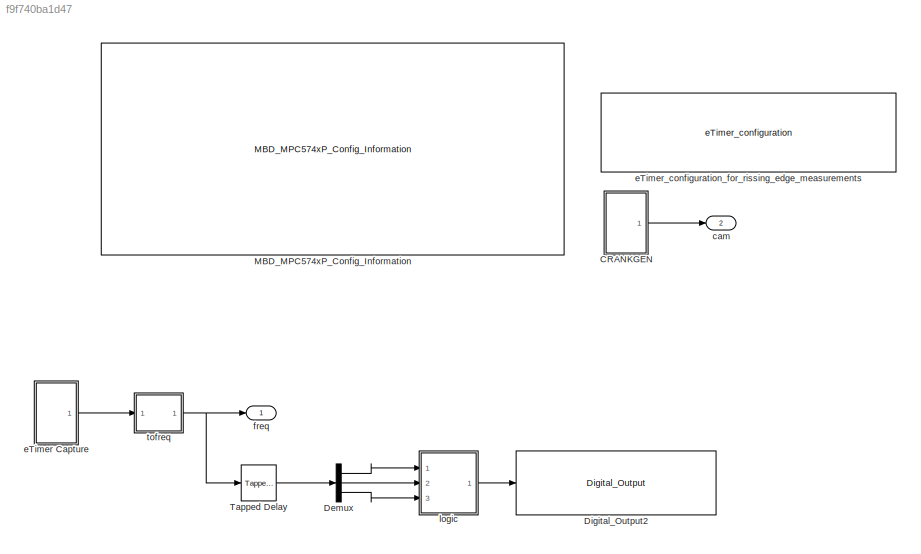
MODEL slx_f9f740ba1d47
KIND model
CONFIG AbsTol = auto
CONFIG EnableMultiTasking = on
CONFIG FixedStep = 1
CONFIG InitFcn = mbd_pnt_consistency_checks(bdroot(gcs));
CONFIG MaxStep = auto
CONFIG MinStep = auto
CONFIG RelTol = 1e-3
CONFIG SampleTimeConstraint = Unconstrained
CONFIG Solver = FixedStepDiscrete
CONFIG SolverName = FixedStepDiscrete
CONFIG StartTime = 0.0
CONFIG StopTime = 50
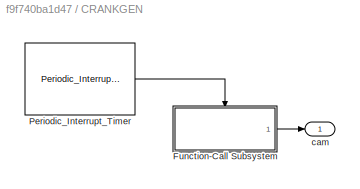
BLOCK [SubSystem] CRANKGEN
  Ports = [0, 1]
  RequestExecContextInheritance = off
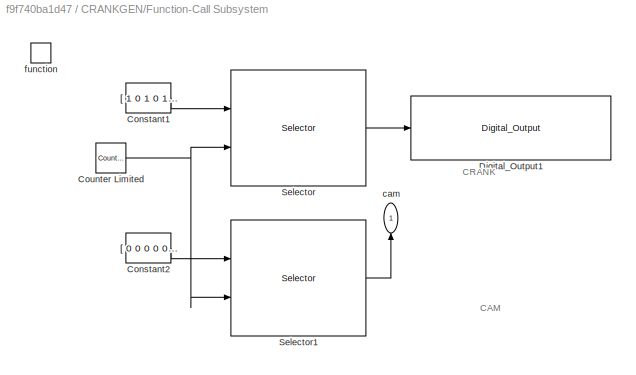
BLOCK [SubSystem] CRANKGEN/Function-Call Subsystem
  Ports = [0, 1, 0, 1]
  RequestExecContextInheritance = off
  TreatAsAtomicUnit = on
BLOCK [Constant] CRANKGEN/Function-Call Subsystem/Constant1
  OutDataTypeStr = boolean
  Value = [ 1 0 1 0 1 0 1 0 1 0 1 0 1 0 1 0 1 0 1 0 1 0 1 0 1 0 1 0 1 0 1 0 1 0 1 0 0 0 0 0 1 0 1 0 1 0 1 0 1 0 1 0 1 0 1 0 1 0 1 0 1 0 1 0 1 0 1 0 1 0 1 0 1 0 1 0 0 0 0 0 1 0 1 0 1 0 1 0 1 0 1 0 1 0 1 0 1 0 1 0 1 0 1 0 1 0 1 0 1 0 1 0 1 0 1 0 0 0 0 0 1 0 1 0 1 0 1 0 1 0 1 0 1 0 1 0 1 0 1 0 1 0 1 0 1 0 1 0 1 0 1 0 1 0 1 0 0 0 0 0 1 0 1 0 1 0 1 0 1 0 1 0 1 0 1 0 1 0 1 0 1 0 1 0 1 0 1 0 1 0 1 0 1 0 1 0 0 0 0 ...<+83ch>
BLOCK [Constant] CRANKGEN/Function-Call Subsystem/Constant2
  OutDataTypeStr = boolean
  Value = [ 0 0 0 0 0 0 0 0 0 0 0 0 0 0 0 0 0 0 0 0 0 0 0 0 0 0 0 0 0 0 0 0 0 0 0 0 0 1 0 0 0 0 0 0 0 0 0 0 0 0 0 0 0 0 0 0 0 0 0 0 0 0 0 0 0 0 0 0 0 0 0 0 0 0 0 0 0 1 0 0 0 0 0 0 0 0 0 0 0 0 0 0 0 0 0 0 0 0 0 0 0 0 0 0 0 0 0 0 0 0 0 0 0 0 0 0 0 1 0 0 0 0 0 0 0 0 0 0 0 0 0 0 0 0 0 0 0 0 0 0 0 0 0 0 0 0 0 0 0 0 0 0 0 0 0 0 0 1 0 0 0 0 0 0 0 0 0 0 0 0 0 0 0 0 0 0 0 0 0 0 0 0 0 0 0 0 0 0 0 0 0 0 0 0 0 0 0 1 0 ...<+83ch>
BLOCK [Reference] CRANKGEN/Function-Call Subsystem/Counter Limited  REF=simulink/Sources/Counter
Limited
  Ports = [0, 1]
  SourceBlock = simulink/Sources/Counter\nLimited
  SourceProductBaseCode = SL
  SourceProductName = Simulink
  SourceType = Counter Limited
BLOCK [Reference] CRANKGEN/Function-Call Subsystem/Digital_Output1  REF=mbd_pnt_ec_toolbox/MPC574xP/Peripheral Interface Blocks/Digital_Output
  Ports = [1]
  SourceBlock = mbd_pnt_ec_toolbox/MPC574xP/Peripheral Interface Blocks/Digital_Output
  SourceProductName = Model Based Design Toolbox for MPC574xP
  SourceType = GPIO_PNT_Output
BLOCK [Selector] CRANKGEN/Function-Call Subsystem/Selector
  IndexMode = Zero-based
  IndexOptions = Index vector (port)
  Indices = [1 3]
  InputPortWidth = 240
  OutputSizes = 1
  Ports = [2, 1]
BLOCK [Selector] CRANKGEN/Function-Call Subsystem/Selector1
  IndexMode = Zero-based
  IndexOptions = Index vector (port)
  Indices = [1 3]
  InputPortWidth = 240
  OutputSizes = 1
  Ports = [2, 1]
BLOCK [Outport] CRANKGEN/Function-Call Subsystem/cam
  IconDisplay = Port number
BLOCK [TriggerPort] CRANKGEN/Function-Call Subsystem/function
  Ports = []
  StatesWhenEnabling = held
  TriggerType = function-call
  VariantControl = Variant
BLOCK [Reference] CRANKGEN/Periodic_Interrupt_Timer  REF=mbd_pnt_ec_toolbox/MPC574xP/Utility Blocks/Periodic_Interrupt_Timer
  Ports = [0, 1]
  SourceBlock = mbd_pnt_ec_toolbox/MPC574xP/Utility Blocks/Periodic_Interrupt_Timer
  SourceProductName = Model Based Design Toolbox for MPC574xP
  SourceType = timer_pnt_pit_block
BLOCK [Outport] CRANKGEN/cam
  IconDisplay = Port number
BLOCK [Demux] Demux
  DisplayOption = bar
  Outputs = 3
  Ports = [1, 3]
BLOCK [Reference] Digital_Output2  REF=mbd_pnt_ec_toolbox/MPC574xP/Peripheral Interface Blocks/Digital_Output
  Ports = [1]
  SourceBlock = mbd_pnt_ec_toolbox/MPC574xP/Peripheral Interface Blocks/Digital_Output
  SourceProductName = Model Based Design Toolbox for MPC574xP
  SourceType = GPIO_PNT_Output
BLOCK [Reference] MBD_MPC574xP_Config_Information  REF=mbd_pnt_ec_toolbox/MPC574xP/MBD_MPC574xP_Config_Information
  Ports = []
  SourceBlock = mbd_pnt_ec_toolbox/MPC574xP/MBD_MPC574xP_Config_Information
  SourceProductName = Model Based Design Toolbox for MPC574xP
  SourceType = MBDTBX_EC_PNT
BLOCK [Reference] Tapped Delay  REF=simulink/Discrete/Tapped Delay
  Ports = [1, 1]
  SourceBlock = simulink/Discrete/Tapped Delay
  SourceProductBaseCode = SL
  SourceProductName = Simulink
  SourceType = Tapped Delay Line
BLOCK [Outport] cam
  IconDisplay = Port number
  Port = 2
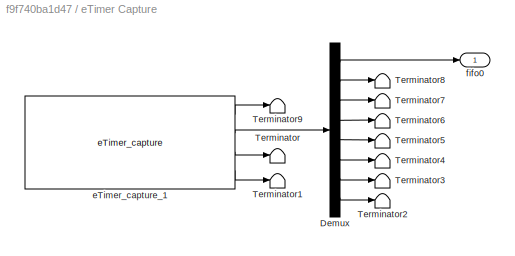
BLOCK [SubSystem] eTimer Capture
  Ports = [0, 1]
  RequestExecContextInheritance = off
BLOCK [Demux] eTimer Capture/Demux
  DisplayOption = bar
  Outputs = 8
  Ports = [1, 8]
BLOCK [Terminator] eTimer Capture/Terminator
BLOCK [Terminator] eTimer Capture/Terminator1
BLOCK [Terminator] eTimer Capture/Terminator2
BLOCK [Terminator] eTimer Capture/Terminator3
BLOCK [Terminator] eTimer Capture/Terminator4
BLOCK [Terminator] eTimer Capture/Terminator5
BLOCK [Terminator] eTimer Capture/Terminator6
BLOCK [Terminator] eTimer Capture/Terminator7
BLOCK [Terminator] eTimer Capture/Terminator8
BLOCK [Terminator] eTimer Capture/Terminator9
BLOCK [Reference] eTimer Capture/eTimer_capture_1  REF=mbd_pnt_ec_toolbox/MPC574xP/Motor Control Blocks/eTimer_capture
  Ports = [0, 4]
  SourceBlock = mbd_pnt_ec_toolbox/MPC574xP/Motor Control Blocks/eTimer_capture
  SourceProductName = Model Based Design Toolbox for MPC574xP
  SourceType = eTimer_pnt_capture
BLOCK [Outport] eTimer Capture/fifo0
  IconDisplay = Port number
BLOCK [Reference] eTimer_configuration_for_rissing_edge_measurements  REF=mbd_pnt_ec_toolbox/MPC574xP/Motor Control Blocks/eTimer_configuration
  Ports = []
  SourceBlock = mbd_pnt_ec_toolbox/MPC574xP/Motor Control Blocks/eTimer_configuration
  SourceProductName = Model Based Design Toolbox for MPC574xP
  SourceType = eTimer_pnt_config
BLOCK [Outport] freq
  IconDisplay = Port number
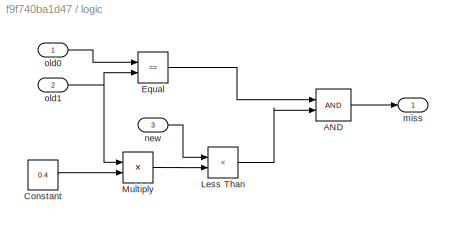
BLOCK [SubSystem] logic
  Ports = [3, 1]
  RequestExecContextInheritance = off
BLOCK [Logic] logic/AND
  AllPortsSameDT = off
  IconShape = distinctive
  OutDataTypeStr = boolean
  Ports = [2, 1]
BLOCK [Constant] logic/Constant
  Value = 0.4
BLOCK [RelationalOperator] logic/Equal
  InputSameDT = off
  Operator = ==
  OutDataTypeStr = boolean
  Ports = [2, 1]
  RndMeth = Simplest
BLOCK [RelationalOperator] logic/Less Than
  InputSameDT = off
  Operator = <
  OutDataTypeStr = boolean
  Ports = [2, 1]
  RndMeth = Simplest
BLOCK [Product] logic/Multiply
  InputSameDT = off
  OutDataTypeStr = Inherit: Inherit via internal rule
  Ports = [2, 1]
  RndMeth = Floor
  SaturateOnIntegerOverflow = off
BLOCK [Outport] logic/miss
  IconDisplay = Port number
BLOCK [Inport] logic/new
  IconDisplay = Port number
  Port = 3
BLOCK [Inport] logic/old0
  IconDisplay = Port number
BLOCK [Inport] logic/old1
  IconDisplay = Port number
  Port = 2
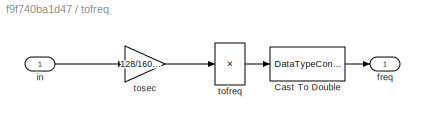
BLOCK [SubSystem] tofreq
  Ports = [1, 1]
  RequestExecContextInheritance = off
BLOCK [DataTypeConversion] tofreq/Cast To Double
  OutDataTypeStr = double
  RndMeth = Floor
  SaturateOnIntegerOverflow = off
BLOCK [Outport] tofreq/freq
  IconDisplay = Port number
BLOCK [Inport] tofreq/in
  IconDisplay = Port number
BLOCK [Product] tofreq/tofreq
  InputSameDT = off
  Inputs = /
  OutDataTypeStr = uint16
  Ports = [1, 1]
  RndMeth = Ceiling
  SaturateOnIntegerOverflow = off
BLOCK [Gain] tofreq/tosec
  Gain = 128/160e+6
  OutDataTypeStr = double
  ParamDataTypeStr = Inherit: Inherit via internal rule
  RndMeth = Ceiling
  SaturateOnIntegerOverflow = off
ANNOTATION CRANKGEN/Function-Call Subsystem: CRANK
ANNOTATION CRANKGEN/Function-Call Subsystem: CAM
LINE CRANKGEN/Function-Call Subsystem/Constant1:1 -> CRANKGEN/Function-Call Subsystem/Selector:1
LINE CRANKGEN/Function-Call Subsystem/Constant2:1 -> CRANKGEN/Function-Call Subsystem/Selector1:1
NET CRANKGEN/Function-Call Subsystem/Counter Limited:1 -> CRANKGEN/Function-Call Subsystem/Selector1:2, CRANKGEN/Function-Call Subsystem/Selector:2
LINE CRANKGEN/Function-Call Subsystem/Selector1:1 -> CRANKGEN/Function-Call Subsystem/cam:1
LINE CRANKGEN/Function-Call Subsystem/Selector:1 -> CRANKGEN/Function-Call Subsystem/Digital_Output1:1
LINE CRANKGEN/Function-Call Subsystem:1 -> CRANKGEN/cam:1
LINE CRANKGEN/Periodic_Interrupt_Timer:1 -> CRANKGEN/Function-Call Subsystem:trigger
LINE CRANKGEN:1 -> cam:1
LINE Demux:1 -> logic:1
LINE Demux:2 -> logic:2
LINE Demux:3 -> logic:3
LINE Tapped Delay:1 -> Demux:1
LINE eTimer Capture/Demux:1 -> eTimer Capture/fifo0:1
LINE eTimer Capture/Demux:2 -> eTimer Capture/Terminator8:1
LINE eTimer Capture/Demux:3 -> eTimer Capture/Terminator7:1
LINE eTimer Capture/Demux:4 -> eTimer Capture/Terminator6:1
LINE eTimer Capture/Demux:5 -> eTimer Capture/Terminator5:1
LINE eTimer Capture/Demux:6 -> eTimer Capture/Terminator4:1
LINE eTimer Capture/Demux:7 -> eTimer Capture/Terminator3:1
LINE eTimer Capture/Demux:8 -> eTimer Capture/Terminator2:1
LINE eTimer Capture/eTimer_capture_1:1 -> eTimer Capture/Terminator9:1
LINE eTimer Capture/eTimer_capture_1:2 -> eTimer Capture/Demux:1
LINE eTimer Capture/eTimer_capture_1:3 -> eTimer Capture/Terminator:1
LINE eTimer Capture/eTimer_capture_1:4 -> eTimer Capture/Terminator1:1
LINE eTimer Capture:1 -> tofreq:1
LINE logic/AND:1 -> logic/miss:1
LINE logic/Constant:1 -> logic/Multiply:2
LINE logic/Equal:1 -> logic/AND:1
LINE logic/Less Than:1 -> logic/AND:2
LINE logic/Multiply:1 -> logic/Less Than:2
LINE logic/new:1 -> logic/Less Than:1
LINE logic/old0:1 -> logic/Equal:1
NET logic/old1:1 -> logic/Equal:2, logic/Multiply:1
LINE logic:1 -> Digital_Output2:1
LINE tofreq/Cast To Double:1 -> tofreq/freq:1
LINE tofreq/in:1 -> tofreq/tosec:1
LINE tofreq/tofreq:1 -> tofreq/Cast To Double:1
LINE tofreq/tosec:1 -> tofreq/tofreq:1
NET tofreq:1 -> Tapped Delay:1, freq:1
note: NET lines group one-source signal fan-out (src -> all destinations, sorted); 1:1 wires keep LINE
